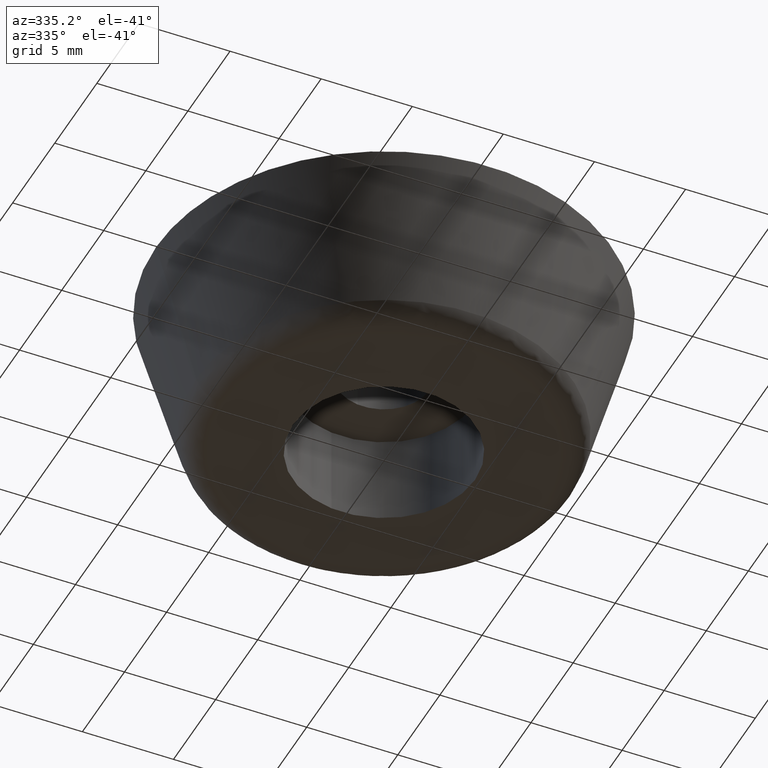
[diagram: clean part render]
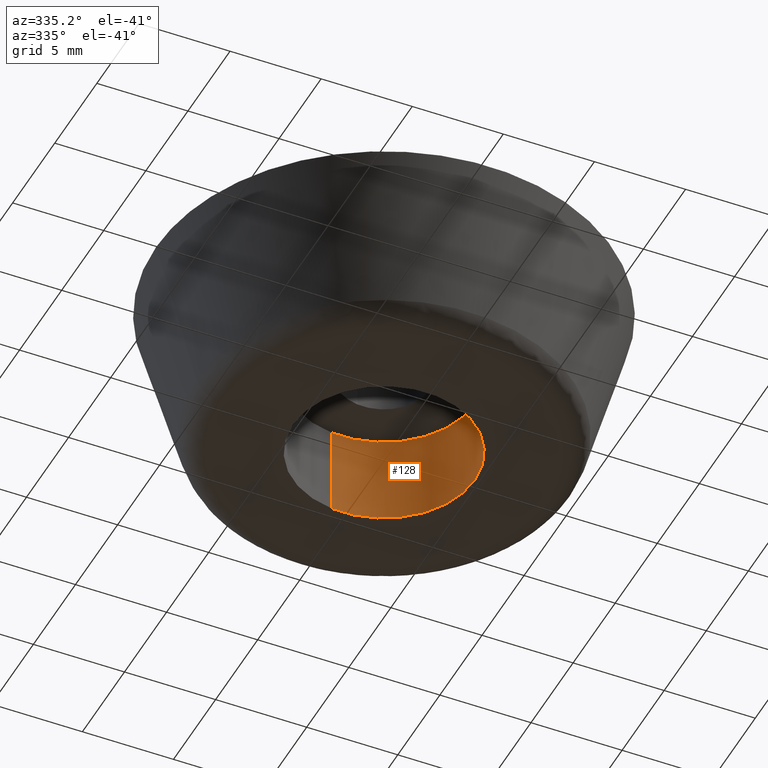
[diagram: same view with one face highlighted and labeled with its STEP entity id]
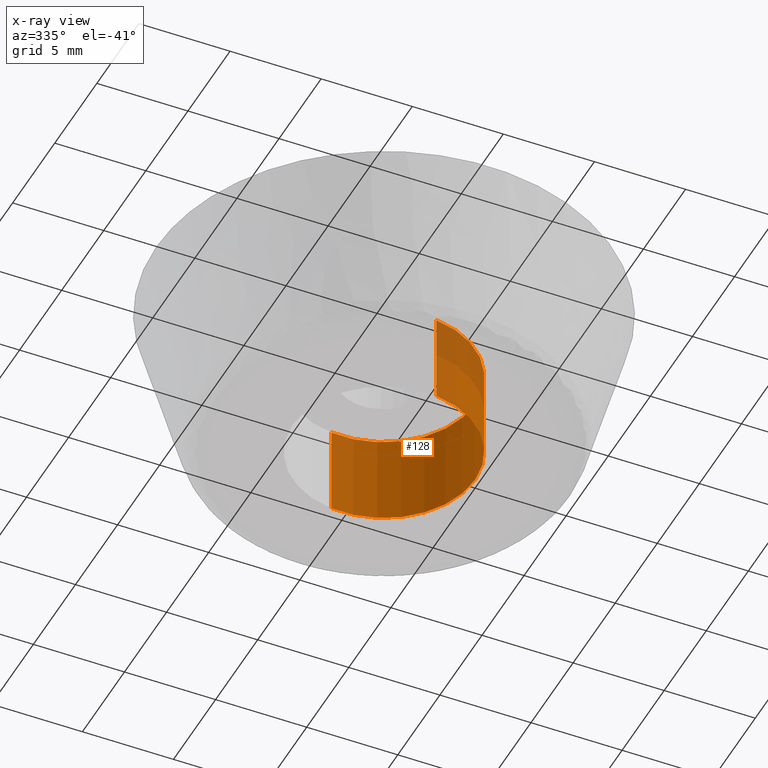
[diagram: x-ray of the same camera — body ghosted, the highlighted face saturated]
A machine part, auxiliary view. The second image highlights one B-rep face of the part: STEP entity #128.
The next image is the same camera in x-ray: the body ghosted, the highlighted face saturated — about 11% of this face is hidden behind the body in this view.
In plain terms, the highlighted cylindrical surface (partial cylindrical patch) has radius 5 mm, axis along (-0, -0, -1).
Its self-contained STEP definition (entity closure, byte-faithful):
#128=ADVANCED_FACE('',(#299),#298,.F.);
#298=CYLINDRICAL_SURFACE('',#481,5.00000000000E+000);
#299=FACE_OUTER_BOUND('',#482,.T.);
#478=CARTESIAN_POINT('',(4.09403708589E-017,-2.04198900911E-018,2.50000000000E+000));
#479=DIRECTION('',(-8.43826895373E-015,-9.13573084373E-016,-1.00000000000E+000));
#480=DIRECTION('',(-1.18034234657E-001,9.93009526364E-001,8.88178419713E-017));
#481=AXIS2_PLACEMENT_3D('',#478,#479,#480);
#482=EDGE_LOOP('',(#566,#567,#568,#569));
#566=ORIENTED_EDGE('',*,*,#601,.F.);
#567=ORIENTED_EDGE('',*,*,#620,.T.);
#568=ORIENTED_EDGE('',*,*,#597,.T.);
#569=ORIENTED_EDGE('',*,*,#621,.F.);
#597=EDGE_CURVE('',#719,#718,#726,.T.);
#601=EDGE_CURVE('',#747,#746,#754,.T.);
#620=EDGE_CURVE('',#747,#719,#880,.T.);
#621=EDGE_CURVE('',#746,#718,#886,.T.);
#718=VERTEX_POINT('',#962);
#719=VERTEX_POINT('',#963);
#726=CIRCLE('',#971,4.99999999999E+000);
#746=VERTEX_POINT('',#982);
#747=VERTEX_POINT('',#983);
#754=CIRCLE('',#991,4.99999999999E+000);
#880=(BOUNDED_CURVE() B_SPLINE_CURVE(1,(#1067,#1068),.UNSPECIFIED.,.F.,.F.) B_SPLINE_CURVE_WITH_KNOTS((2,2),(8.33333383004E-002,9.16666664635E-001),.UNSPECIFIED.) CURVE() GEOMETRIC_REPRESENTATION_ITEM() RATIONAL_B_SPLINE_CURVE((1.00000000000E+000,1.00000000000E+000)) REPRESENTATION_ITEM('') );
#886=(BOUNDED_CURVE() B_SPLINE_CURVE(1,(#1069,#1070),.UNSPECIFIED.,.F.,.F.) B_SPLINE_CURVE_WITH_KNOTS((2,2),(8.33333333333E-002,9.16666666667E-001),.UNSPECIFIED.) CURVE() GEOMETRIC_REPRESENTATION_ITEM() RATIONAL_B_SPLINE_CURVE((7.50000000000E-001,7.50000000000E-001)) REPRESENTATION_ITEM('') );
#962=CARTESIAN_POINT('',(5.91029306033E-001,-4.96494555451E+000,2.97637915548E-016));
#963=CARTESIAN_POINT('',(-5.91029306010E-001,4.96494555452E+000,1.49509420730E-016));
#968=CARTESIAN_POINT('',(1.13309361893E-011,5.15054665584E-012,2.23573668139E-016));
#969=DIRECTION('',(-4.98139383684E-016,-7.42161656364E-017,-1.00000000000E+000));
#970=DIRECTION('',(-1.18205861205E-001,9.92989110905E-001,-1.48128494818E-017));
#971=AXIS2_PLACEMENT_3D('',#968,#969,#970);
#982=CARTESIAN_POINT('',(5.90169357594E-001,-4.96504784763E+000,5.00000000000E+000));
#983=CARTESIAN_POINT('',(-5.90171173284E-001,4.96504763181E+000,5.00000000000E+000));
#988=CARTESIAN_POINT('',(1.16071596779E-011,5.27533572381E-012,5.00000000000E+000));
#989=DIRECTION('',(4.26325641457E-015,6.87882458529E-016,-1.00000000000E+000));
#990=DIRECTION('',(1.18033871517E-001,-9.93009569528E-001,-1.79865204150E-016));
#991=AXIS2_PLACEMENT_3D('',#988,#989,#990);
#1067=CARTESIAN_POINT('',(-5.90171173285E-001,4.96504763182E+000,4.99999997020E+000));
#1068=CARTESIAN_POINT('',(-5.90171173285E-001,4.96504763182E+000,1.21923348084E-008));
#1069=CARTESIAN_POINT('',(5.90171173285E-001,-4.96504763182E+000,5.00000000000E+000));
#1070=CARTESIAN_POINT('',(5.90171173285E-001,-4.96504763182E+000,-5.92118946467E-016));